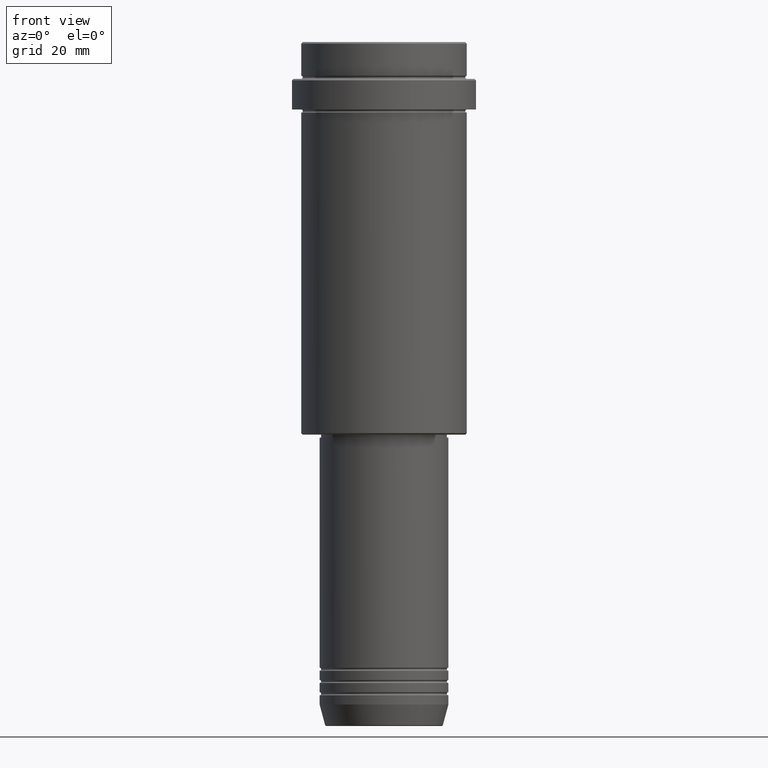
[diagram: clean part render]
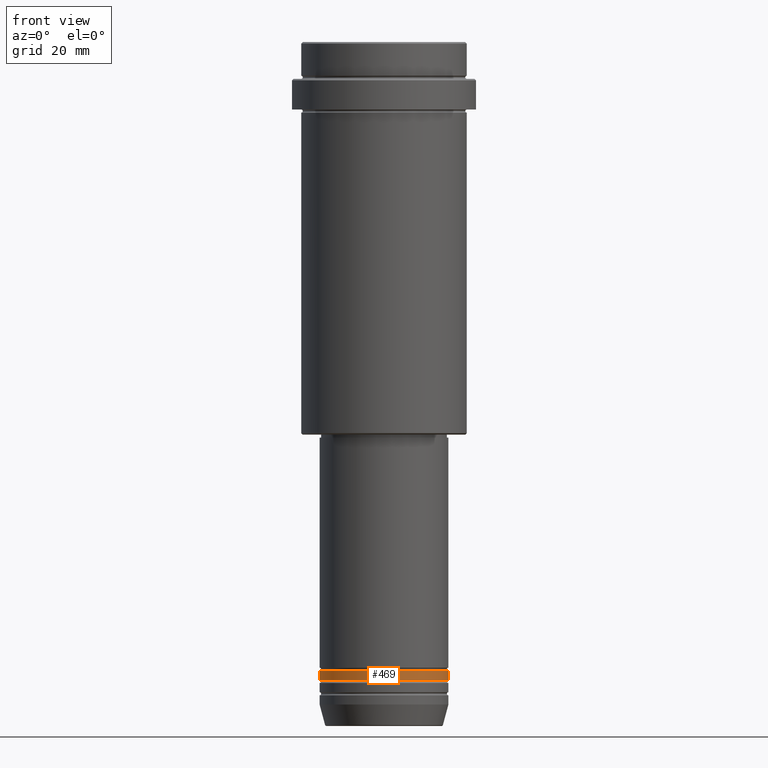
[diagram: same view with one face highlighted and labeled with its STEP entity id]
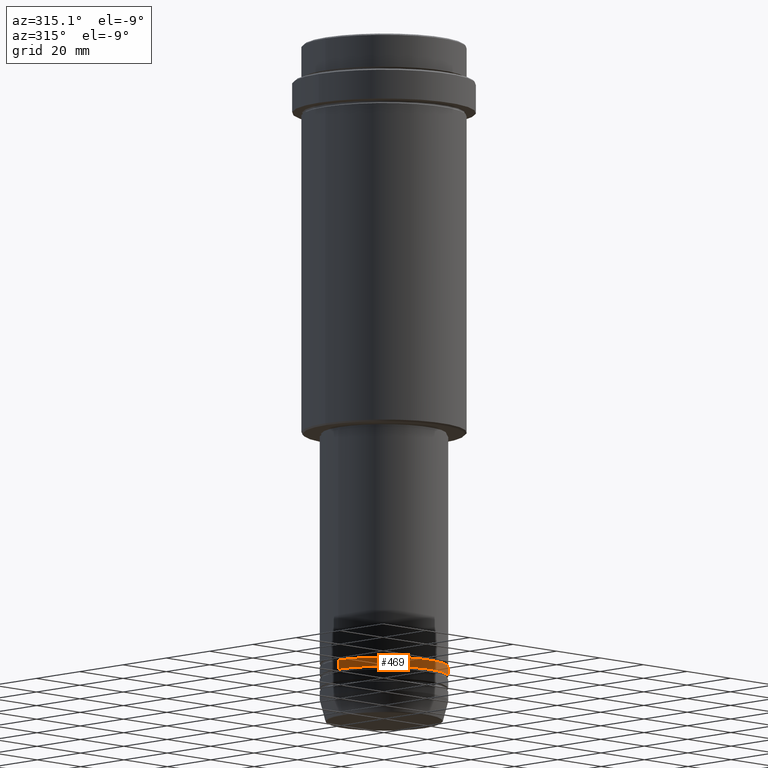
[diagram: same view with one face highlighted and labeled with its STEP entity id]
A machine part, front view. The second image highlights one B-rep face of the part: STEP entity #469.
A second angle (auxiliary view) of the same face is appended — the face is thin or edge-on in the first view.
In plain terms, the highlighted cylindrical surface (partial cylindrical patch) has radius 21 mm, axis along (-0, -0, 1).
Its self-contained STEP definition (entity closure, byte-faithful):
#36 = CIRCLE ( 'NONE', #673, 21.00000000000000000 ) ;
#55 = CARTESIAN_POINT ( 'NONE',  ( 21.00000000000000000, 0.000000000000000000, 0.000000000000000000 ) ) ;
#88 = ORIENTED_EDGE ( 'NONE', *, *, #1159, .T. ) ;
#94 = EDGE_CURVE ( 'NONE', #661, #757, #290, .T. ) ;
#155 = CARTESIAN_POINT ( 'NONE',  ( 0.000000000000000000, 0.000000000000000000, -207.9999999999999147 ) ) ;
#175 = VERTEX_POINT ( 'NONE', #784 ) ;
#233 = AXIS2_PLACEMENT_3D ( 'NONE', #354, #241, #908 ) ;
#241 = DIRECTION ( 'NONE',  ( -0.000000000000000000, -0.000000000000000000, 1.000000000000000000 ) ) ;
#279 = ORIENTED_EDGE ( 'NONE', *, *, #94, .F. ) ;
#290 = LINE ( 'NONE', #958, #533 ) ;
#330 = CARTESIAN_POINT ( 'NONE',  ( -21.00000000000000000, 2.571758278209441661E-15, -207.9999999999999147 ) ) ;
#354 = CARTESIAN_POINT ( 'NONE',  ( 0.000000000000000000, 0.000000000000000000, -204.9999999999999147 ) ) ;
#469 = ADVANCED_FACE ( 'NONE', ( #641 ), #515, .T. ) ;
#515 = CYLINDRICAL_SURFACE ( 'NONE', #1174, 21.00000000000000000 ) ;
#533 = VECTOR ( 'NONE', #1394, 1000.000000000000000 ) ;
#567 = ORIENTED_EDGE ( 'NONE', *, *, #1129, .T. ) ;
#607 = VECTOR ( 'NONE', #1171, 1000.000000000000000 ) ;
#641 = FACE_OUTER_BOUND ( 'NONE', #1205, .T. ) ;
#661 = VERTEX_POINT ( 'NONE', #330 ) ;
#669 = DIRECTION ( 'NONE',  ( -0.000000000000000000, -0.000000000000000000, 1.000000000000000000 ) ) ;
#673 = AXIS2_PLACEMENT_3D ( 'NONE', #155, #669, #1104 ) ;
#693 = VERTEX_POINT ( 'NONE', #1252 ) ;
#721 = ORIENTED_EDGE ( 'NONE', *, *, #1147, .F. ) ;
#757 = VERTEX_POINT ( 'NONE', #1172 ) ;
#784 = CARTESIAN_POINT ( 'NONE',  ( 21.00000000000000000, 0.000000000000000000, -204.9999999999999147 ) ) ;
#854 = CIRCLE ( 'NONE', #233, 21.00000000000000000 ) ;
#908 = DIRECTION ( 'NONE',  ( 1.000000000000000000, 0.000000000000000000, 0.000000000000000000 ) ) ;
#958 = CARTESIAN_POINT ( 'NONE',  ( -21.00000000000000000, 2.571758278209441661E-15, 0.000000000000000000 ) ) ;
#1104 = DIRECTION ( 'NONE',  ( 1.000000000000000000, 0.000000000000000000, 0.000000000000000000 ) ) ;
#1129 = EDGE_CURVE ( 'NONE', #661, #693, #36, .T. ) ;
#1147 = EDGE_CURVE ( 'NONE', #757, #175, #854, .T. ) ;
#1159 = EDGE_CURVE ( 'NONE', #693, #175, #1351, .T. ) ;
#1171 = DIRECTION ( 'NONE',  ( -0.000000000000000000, -0.000000000000000000, 1.000000000000000000 ) ) ;
#1172 = CARTESIAN_POINT ( 'NONE',  ( -21.00000000000000000, 2.571758278209441661E-15, -204.9999999999999147 ) ) ;
#1174 = AXIS2_PLACEMENT_3D ( 'NONE', #1279, #1299, #1413 ) ;
#1205 = EDGE_LOOP ( 'NONE', ( #279, #567, #88, #721 ) ) ;
#1252 = CARTESIAN_POINT ( 'NONE',  ( 21.00000000000000000, 0.000000000000000000, -207.9999999999999147 ) ) ;
#1279 = CARTESIAN_POINT ( 'NONE',  ( 0.000000000000000000, 0.000000000000000000, 0.000000000000000000 ) ) ;
#1299 = DIRECTION ( 'NONE',  ( -0.000000000000000000, -0.000000000000000000, 1.000000000000000000 ) ) ;
#1351 = LINE ( 'NONE', #55, #607 ) ;
#1394 = DIRECTION ( 'NONE',  ( -0.000000000000000000, -0.000000000000000000, 1.000000000000000000 ) ) ;
#1413 = DIRECTION ( 'NONE',  ( 1.000000000000000000, 0.000000000000000000, 0.000000000000000000 ) ) ;